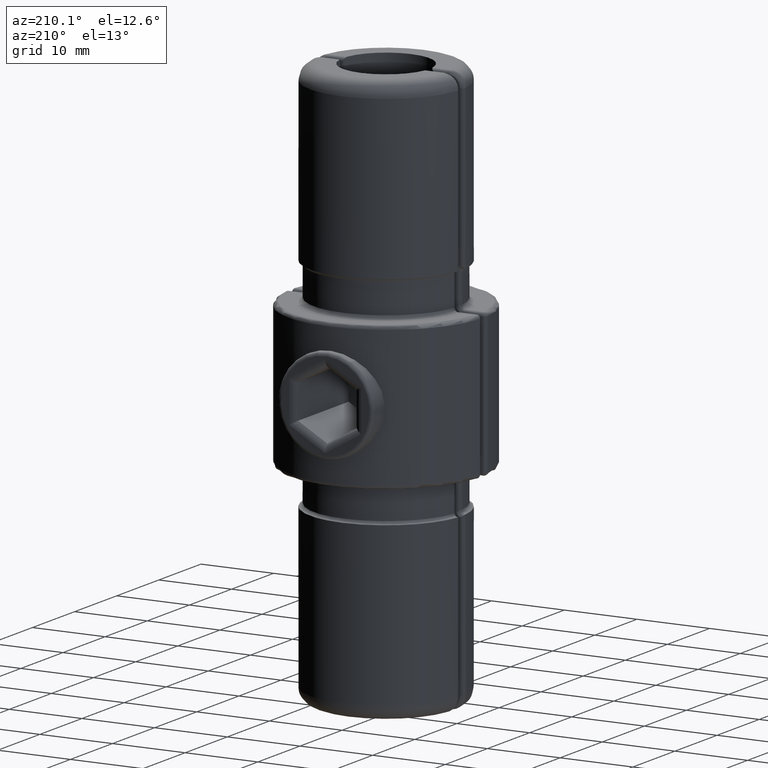
[diagram: clean part render]
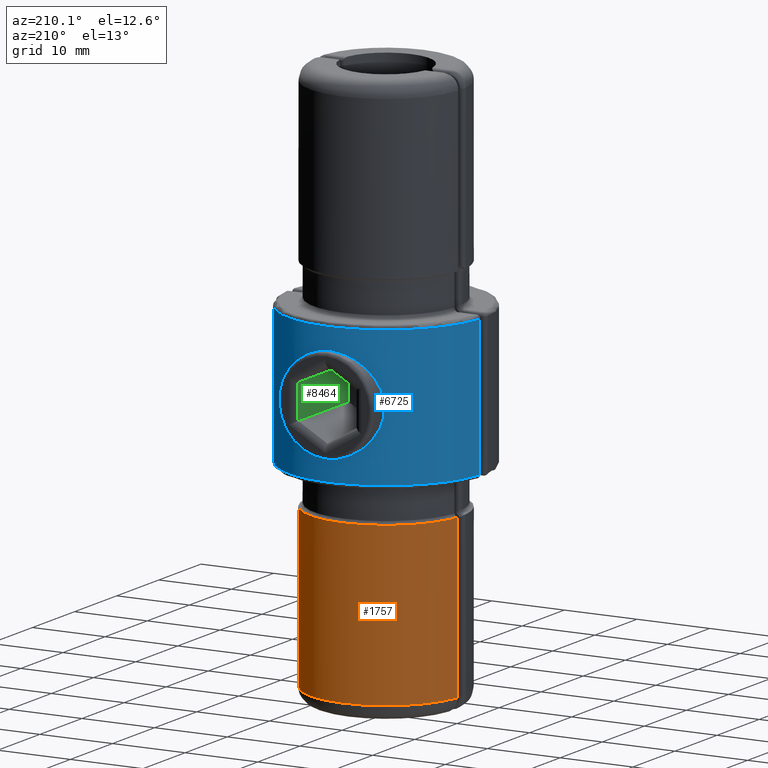
[diagram: same view with three faces highlighted in distinct colors, each labeled with its STEP entity id]
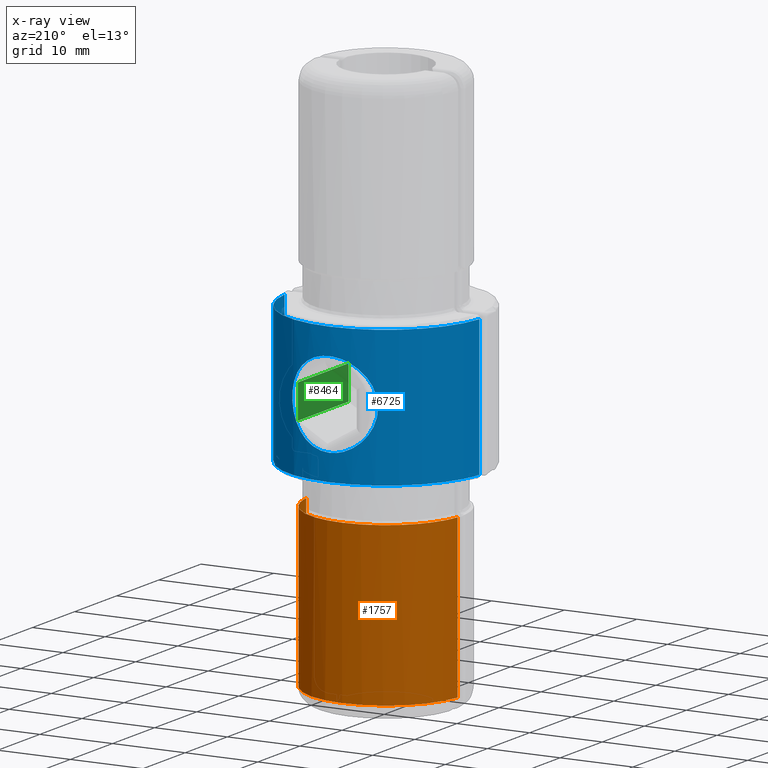
[diagram: x-ray of the same camera — body ghosted, the three highlighted faces saturated]
A machine part, auxiliary view with three faces highlighted in distinct colors.
The next image is the same camera in x-ray (body ghosted, the three faces saturated) — at least one of them is partly hidden behind the body in this view.
Their STEP definitions:

[orange] entity #1757 — the highlighted cylindrical surface (partial cylindrical patch) has radius 10.45 mm, axis along (0, 0, 1).
#159 = CARTESIAN_POINT ( 'NONE',  ( -9.562282454287899469, 3.820635007851544529, -15.00000000000003020 ) ) ;
#170 = CARTESIAN_POINT ( 'NONE',  ( -1.542399603730758129, 9.884835217246754624, -15.00000000000006573 ) ) ;
#339 = CARTESIAN_POINT ( 'NONE',  ( 9.485746277034950324, 3.967433925704642483, -15.00000000000001066 ) ) ;
#391 = DIRECTION ( 'NONE',  ( 0.000000000000000000, 0.000000000000000000, -1.000000000000000000 ) ) ;
#544 = CARTESIAN_POINT ( 'NONE',  ( -0.0003690679056815289005, 9.999999993793529995, -14.99999999999999822 ) ) ;
#557 = VERTEX_POINT ( 'NONE', #2678 ) ;
#579 = CARTESIAN_POINT ( 'NONE',  ( 7.102350287940888407, 7.253004276110678994, -15.00000000000003375 ) ) ;
#614 = CARTESIAN_POINT ( 'NONE',  ( 5.863474214424266862, 8.207855761381399162, -15.00000000000004796 ) ) ;
#684 = VECTOR ( 'NONE', #8338, 1000.000000000000000 ) ;
#1069 = CARTESIAN_POINT ( 'NONE',  ( -10.39728941257281747, 0.5472623821140010225, -15.00000000000002309 ) ) ;
#1229 = B_SPLINE_CURVE_WITH_KNOTS ( 'NONE', 3,
 ( #2390, #159, #7563, #5402, #3150, #3929, #9157, #3083, #4666, #8318, #6739, #8423, #9192, #8461, #1069 ),
 .UNSPECIFIED., .F., .F.,
 ( 4, 2, 2, 1, 1, 2, 2, 1, 4 ),
 ( 0.000000000000000000, 0.4507531445892120070, 0.5634414307365153141, 0.6761297168838189542, 0.7324738599574707187, 0.7465598957258835489, 0.7606459314942964900, 0.7888180030311221502, 0.9015062891784260124 ),
 .UNSPECIFIED. ) ;
#1266 = CARTESIAN_POINT ( 'NONE',  ( 8.266365894244647892E-17, -0.4500000000000007327, -37.00000000000000000 ) ) ;
#1335 = EDGE_CURVE ( 'NONE', #6159, #3824, #8607, .T. ) ;
#1555 = CARTESIAN_POINT ( 'NONE',  ( 9.221602206786830180, 4.465745390048624586, -15.00000000000001421 ) ) ;
#1684 = CARTESIAN_POINT ( 'NONE',  ( -7.654026996657409043, 6.706037979867748078, -15.00000000000004974 ) ) ;
#1722 = CARTESIAN_POINT ( 'NONE',  ( 9.221602206786830180, 4.465745390048624586, -15.00000000000001421 ) ) ;
#1757 = ADVANCED_FACE ( 'NONE', ( #6575 ), #2931, .T. ) ;
#1889 = CARTESIAN_POINT ( 'NONE',  ( 8.913014042439391105, 5.044635684711844981, -15.00000000000001776 ) ) ;
#1972 = B_SPLINE_CURVE_WITH_KNOTS ( 'NONE', 3,
 ( #6263, #3993, #339, #8498 ),
 .UNSPECIFIED., .F., .F.,
 ( 4, 4 ),
 ( 0.000000000000000000, 1.000000000000000000 ),
 .UNSPECIFIED. ) ;
#1985 = CARTESIAN_POINT ( 'NONE',  ( -8.559514531026907846, 5.581671991499237429, -15.00000000000004263 ) ) ;
#1986 = DIRECTION ( 'NONE',  ( -1.000000000000000000, 0.000000000000000000, 0.000000000000000000 ) ) ;
#2001 = CARTESIAN_POINT ( 'NONE',  ( 3.626633261083067605, 9.361987931583241718, -15.00000000000005684 ) ) ;
#2063 = ORIENTED_EDGE ( 'NONE', *, *, #6753, .T. ) ;
#2145 = CARTESIAN_POINT ( 'NONE',  ( 8.141880822221830627, 6.100746268688505225, -14.99999999999998934 ) ) ;
#2268 = ORIENTED_EDGE ( 'NONE', *, *, #3657, .F. ) ;
#2390 = CARTESIAN_POINT ( 'NONE',  ( -9.235859461141735949, 4.438905809487426524, -14.99999999999999645 ) ) ;
#2407 = ORIENTED_EDGE ( 'NONE', *, *, #7197, .F. ) ;
#2462 = DIRECTION ( 'NONE',  ( -0.000000000000000000, -0.000000000000000000, 1.000000000000000000 ) ) ;
#2469 = CARTESIAN_POINT ( 'NONE',  ( -1.928255717462747265, 9.819044266413028410, -15.00000000000006928 ) ) ;
#2504 = CARTESIAN_POINT ( 'NONE',  ( -7.102931983994258403, 7.252346914914812537, -15.00000000000005862 ) ) ;
#2533 = CARTESIAN_POINT ( 'NONE',  ( -5.874259584538960688, 8.226999232659467864, -15.00000000000006217 ) ) ;
#2666 = ORIENTED_EDGE ( 'NONE', *, *, #1335, .F. ) ;
#2678 = CARTESIAN_POINT ( 'NONE',  ( -10.39728941257281747, 0.5472623821140010225, -15.00000000000002309 ) ) ;
#2712 = B_SPLINE_CURVE_WITH_KNOTS ( 'NONE', 3,
 ( #7786, #6051, #6176, #6992 ),
 .UNSPECIFIED., .F., .F.,
 ( 4, 4 ),
 ( 0.000000000000000000, 1.000000000000000000 ),
 .UNSPECIFIED. ) ;
#2739 = CARTESIAN_POINT ( 'NONE',  ( 2.695129648469022143, 9.644852723558727803, -15.00000000000005684 ) ) ;
#2857 = B_SPLINE_CURVE_WITH_KNOTS ( 'NONE', 3,
 ( #2145, #6523, #579, #7174, #614, #7302, #5722, #6455, #2001, #7205, #2739, #8728, #9484, #5016, #544 ),
 .UNSPECIFIED., .F., .F.,
 ( 4, 2, 2, 2, 1, 2, 2, 4 ),
 ( 0.000000000000000000, 0.2500000000000000000, 0.3750000000000000000, 0.5000000000000000000, 0.6250000000000000000, 0.6875000000000000000, 0.7500000000000000000, 1.000000000000000000 ),
 .UNSPECIFIED. ) ;
#2931 = CYLINDRICAL_SURFACE ( 'NONE', #5478, 10.45000000000000284 ) ;
#2997 = EDGE_LOOP ( 'NONE', ( #4011, #2063, #3286, #6909, #3500, #9222, #2666, #2407, #7103, #4986, #2268 ) ) ;
#3083 = CARTESIAN_POINT ( 'NONE',  ( -10.30322256304947892, 1.295387893398272983, -15.00000000000001066 ) ) ;
#3093 = CARTESIAN_POINT ( 'NONE',  ( -8.141880822256059247, 6.100746268645965920, -14.99999999999999467 ) ) ;
#3129 = CARTESIAN_POINT ( 'NONE',  ( -4.163159171856150031, 9.141665113258202524, -15.00000000000006395 ) ) ;
#3150 = CARTESIAN_POINT ( 'NONE',  ( -10.12138501882786024, 2.168225122645813130, -15.00000000000001421 ) ) ;
#3183 = DIRECTION ( 'NONE',  ( 1.000000000000000000, 0.000000000000000000, 0.000000000000000000 ) ) ;
#3225 = CARTESIAN_POINT ( 'NONE',  ( -0.0003690679056815289005, 9.999999993793529995, -14.99999999999999822 ) ) ;
#3286 = ORIENTED_EDGE ( 'NONE', *, *, #8273, .T. ) ;
#3500 = ORIENTED_EDGE ( 'NONE', *, *, #4340, .F. ) ;
#3508 = CARTESIAN_POINT ( 'NONE',  ( -8.924174077322117427, 5.027725171779714231, -15.00000000000003908 ) ) ;
#3514 = CARTESIAN_POINT ( 'NONE',  ( 8.141880822221830627, 6.100746268688505225, -14.99999999999998934 ) ) ;
#3548 = VERTEX_POINT ( 'NONE', #6211 ) ;
#3657 = EDGE_CURVE ( 'NONE', #5976, #3548, #2712, .T. ) ;
#3788 = CARTESIAN_POINT ( 'NONE',  ( 10.29578653130654153, 1.338653041192420901, -15.00000000000000355 ) ) ;
#3824 = VERTEX_POINT ( 'NONE', #6942 ) ;
#3927 = EDGE_CURVE ( 'NONE', #3824, #5027, #9487, .T. ) ;
#3929 = CARTESIAN_POINT ( 'NONE',  ( -10.20374640384460108, 1.826662198050900798, -15.00000000000001954 ) ) ;
#3993 = CARTESIAN_POINT ( 'NONE',  ( 9.712974276227775761, 3.440778503204462435, -15.00000000000000533 ) ) ;
#4011 = ORIENTED_EDGE ( 'NONE', *, *, #5711, .F. ) ;
#4031 = CARTESIAN_POINT ( 'NONE',  ( 8.266365894244647892E-17, -0.4500000000000007327, -39.00000000000000000 ) ) ;
#4178 = LINE ( 'NONE', #7129, #6934 ) ;
#4299 = LINE ( 'NONE', #7717, #684 ) ;
#4340 = EDGE_CURVE ( 'NONE', #5027, #557, #1229, .T. ) ;
#4391 = EDGE_CURVE ( 'NONE', #3548, #8971, #1972, .T. ) ;
#4465 = VERTEX_POINT ( 'NONE', #4780 ) ;
#4613 = CARTESIAN_POINT ( 'NONE',  ( -2.122347904037088728, 9.780414575336306982, -15.00000000000007105 ) ) ;
#4666 = CARTESIAN_POINT ( 'NONE',  ( -10.31870294499509733, 1.189498413811702848, -15.00000000000001066 ) ) ;
#4780 = CARTESIAN_POINT ( 'NONE',  ( -10.40226021110595767, 0.5477386934673380559, -37.00000000000000000 ) ) ;
#4986 = ORIENTED_EDGE ( 'NONE', *, *, #4391, .F. ) ;
#5016 = CARTESIAN_POINT ( 'NONE',  ( 0.7697595916389222692, 10.00002719281474128, -15.00000000000006928 ) ) ;
#5027 = VERTEX_POINT ( 'NONE', #7168 ) ;
#5029 = DIRECTION ( 'NONE',  ( -0.000000000000000000, -0.000000000000000000, 1.000000000000000000 ) ) ;
#5211 = DIRECTION ( 'NONE',  ( 0.000000000000000000, 1.000000000000000000, -7.968107832237963299E-15 ) ) ;
#5223 = EDGE_CURVE ( 'NONE', #4465, #557, #4299, .T. ) ;
#5402 = CARTESIAN_POINT ( 'NONE',  ( -10.07477046159532996, 2.339308476267471626, -15.00000000000001599 ) ) ;
#5476 = CARTESIAN_POINT ( 'NONE',  ( -3.806771743316903933, 9.288013314900439354, -15.00000000000006395 ) ) ;
#5478 = AXIS2_PLACEMENT_3D ( 'NONE', #4031, #2462, #3183 ) ;
#5711 = EDGE_CURVE ( 'NONE', #8442, #5976, #5814, .T. ) ;
#5718 = VERTEX_POINT ( 'NONE', #3514 ) ;
#5722 = CARTESIAN_POINT ( 'NONE',  ( 4.864106495992341017, 8.806486684908024998, -15.00000000000005329 ) ) ;
#5814 = CIRCLE ( 'NONE', #7600, 10.45000000000000284 ) ;
#5925 = DIRECTION ( 'NONE',  ( -1.154816685014190132E-15, 7.998275916180468242E-15, 1.000000000000000000 ) ) ;
#5976 = VERTEX_POINT ( 'NONE', #3788 ) ;
#6051 = CARTESIAN_POINT ( 'NONE',  ( 10.20445323738968924, 1.864382780673968343, -14.99999999999999112 ) ) ;
#6159 = VERTEX_POINT ( 'NONE', #9394 ) ;
#6176 = CARTESIAN_POINT ( 'NONE',  ( 10.07361979507610172, 2.380091474458734258, -14.99999999999999645 ) ) ;
#6211 = CARTESIAN_POINT ( 'NONE',  ( 9.903286204365777223, 2.885779122546717090, -15.00000000000000711 ) ) ;
#6242 = CARTESIAN_POINT ( 'NONE',  ( -0.9637703130330962376, 9.967077307187562241, -15.00000000000006928 ) ) ;
#6263 = CARTESIAN_POINT ( 'NONE',  ( 9.903286204365777223, 2.885779122546717090, -15.00000000000000711 ) ) ;
#6455 = CARTESIAN_POINT ( 'NONE',  ( 4.164162957203257243, 9.141111714049607428, -15.00000000000005329 ) ) ;
#6523 = CARTESIAN_POINT ( 'NONE',  ( 7.652247447511332901, 6.707620253299118041, -15.00000000000003020 ) ) ;
#6575 = FACE_OUTER_BOUND ( 'NONE', #2997, .T. ) ;
#6688 = CARTESIAN_POINT ( 'NONE',  ( 8.266365894244647892E-17, -0.4500000000000007327, -14.99999999999998579 ) ) ;
#6697 = EDGE_CURVE ( 'NONE', #8971, #5718, #7233, .T. ) ;
#6739 = CARTESIAN_POINT ( 'NONE',  ( -10.32647051972234031, 1.134526509462367105, -15.00000000000001066 ) ) ;
#6753 = EDGE_CURVE ( 'NONE', #8442, #6842, #4178, .T. ) ;
#6842 = VERTEX_POINT ( 'NONE', #7380 ) ;
#6878 = CARTESIAN_POINT ( 'NONE',  ( -0.3856056620363909615, 9.999986388198978560, -15.00000000000006750 ) ) ;
#6909 = ORIENTED_EDGE ( 'NONE', *, *, #5223, .T. ) ;
#6934 = VECTOR ( 'NONE', #391, 1000.000000000000000 ) ;
#6942 = CARTESIAN_POINT ( 'NONE',  ( -8.141880822256059247, 6.100746268645965920, -14.99999999999999467 ) ) ;
#6992 = CARTESIAN_POINT ( 'NONE',  ( 9.903286204365777223, 2.885779122546717090, -15.00000000000000711 ) ) ;
#7103 = ORIENTED_EDGE ( 'NONE', *, *, #6697, .F. ) ;
#7129 = CARTESIAN_POINT ( 'NONE',  ( 10.40226021110595589, 0.5477386934673416086, -39.00000000000000000 ) ) ;
#7164 = CARTESIAN_POINT ( 'NONE',  ( 8.141880822221830627, 6.100746268688505225, -14.99999999999998934 ) ) ;
#7168 = CARTESIAN_POINT ( 'NONE',  ( -9.235859461141735949, 4.438905809487426524, -14.99999999999999645 ) ) ;
#7174 = CARTESIAN_POINT ( 'NONE',  ( 6.181477988876663332, 7.983310993601718586, -15.00000000000004619 ) ) ;
#7187 = CARTESIAN_POINT ( 'NONE',  ( -9.235859461141735949, 4.438905809487426524, -14.99999999999999645 ) ) ;
#7197 = EDGE_CURVE ( 'NONE', #5718, #6159, #2857, .T. ) ;
#7205 = CARTESIAN_POINT ( 'NONE',  ( 3.070245501920316755, 9.537725317633041655, -15.00000000000006217 ) ) ;
#7233 = B_SPLINE_CURVE_WITH_KNOTS ( 'NONE', 3,
 ( #1722, #1889, #9346, #7164 ),
 .UNSPECIFIED., .F., .F.,
 ( 4, 4 ),
 ( 0.000000000000000000, 1.000000000000000000 ),
 .UNSPECIFIED. ) ;
#7302 = CARTESIAN_POINT ( 'NONE',  ( 5.205373982657508058, 8.619163687506105731, -15.00000000000004796 ) ) ;
#7380 = CARTESIAN_POINT ( 'NONE',  ( 10.40226021110595589, 0.5477386934673409424, -37.00000000000000000 ) ) ;
#7492 = CARTESIAN_POINT ( 'NONE',  ( 10.40226021110595767, 0.5477386934673418306, -14.99999999999998224 ) ) ;
#7563 = CARTESIAN_POINT ( 'NONE',  ( -9.825287239642221948, 3.176587855386136194, -15.00000000000002665 ) ) ;
#7600 = AXIS2_PLACEMENT_3D ( 'NONE', #6688, #5925, #5211 ) ;
#7671 = CARTESIAN_POINT ( 'NONE',  ( -5.217071789118105762, 8.637648802877794907, -15.00000000000006040 ) ) ;
#7717 = CARTESIAN_POINT ( 'NONE',  ( -10.40226021110595589, 0.5477386934673377228, -39.00000000000000000 ) ) ;
#7786 = CARTESIAN_POINT ( 'NONE',  ( 10.29578653130654153, 1.338653041192420901, -15.00000000000000355 ) ) ;
#8034 = CARTESIAN_POINT ( 'NONE',  ( -8.141880822256059247, 6.100746268645965920, -14.99999999999999467 ) ) ;
#8184 = AXIS2_PLACEMENT_3D ( 'NONE', #1266, #5029, #1986 ) ;
#8273 = EDGE_CURVE ( 'NONE', #6842, #4465, #9418, .T. ) ;
#8318 = CARTESIAN_POINT ( 'NONE',  ( -10.32473097695939046, 1.147156204926665035, -15.00000000000001243 ) ) ;
#8331 = CARTESIAN_POINT ( 'NONE',  ( -2.698104325210987753, 9.649597787135888893, -15.00000000000006750 ) ) ;
#8338 = DIRECTION ( 'NONE',  ( -0.000000000000000000, -0.000000000000000000, 1.000000000000000000 ) ) ;
#8423 = CARTESIAN_POINT ( 'NONE',  ( -10.33256874165436834, 1.089564360847934177, -15.00000000000001243 ) ) ;
#8442 = VERTEX_POINT ( 'NONE', #7492 ) ;
#8461 = CARTESIAN_POINT ( 'NONE',  ( -10.37454570456017144, 0.7323550888248426816, -15.00000000000001066 ) ) ;
#8475 = CARTESIAN_POINT ( 'NONE',  ( -3.073372854478544358, 9.542396415835352030, -15.00000000000006573 ) ) ;
#8498 = CARTESIAN_POINT ( 'NONE',  ( 9.221602206786830180, 4.465745390048624586, -15.00000000000001421 ) ) ;
#8607 = B_SPLINE_CURVE_WITH_KNOTS ( 'NONE', 3,
 ( #3225, #6878, #6242, #170, #2469, #4613, #8331, #8475, #5476, #3129, #7671, #2533, #2504, #1684, #3093 ),
 .UNSPECIFIED., .F., .F.,
 ( 4, 1, 2, 2, 2, 2, 2, 4 ),
 ( 0.000000000000000000, 0.1250000000000000833, 0.1875000000000000833, 0.2500000000000001110, 0.3750000000000002220, 0.5000000000000003331, 0.7500000000000002220, 1.000000000000000000 ),
 .UNSPECIFIED. ) ;
#8728 = CARTESIAN_POINT ( 'NONE',  ( 2.506878416102263252, 9.693082695656100256, -15.00000000000006040 ) ) ;
#8971 = VERTEX_POINT ( 'NONE', #1555 ) ;
#9157 = CARTESIAN_POINT ( 'NONE',  ( -10.25763964353737556, 1.571141986185011108, -15.00000000000001776 ) ) ;
#9192 = CARTESIAN_POINT ( 'NONE',  ( -10.35308502666953956, 0.9314817300483647644, -15.00000000000000533 ) ) ;
#9222 = ORIENTED_EDGE ( 'NONE', *, *, #3927, .F. ) ;
#9346 = CARTESIAN_POINT ( 'NONE',  ( 8.553106914251058512, 5.589635977591805194, -15.00000000000002132 ) ) ;
#9394 = CARTESIAN_POINT ( 'NONE',  ( -0.0003690679056815289005, 9.999999993793529995, -14.99999999999999822 ) ) ;
#9418 = CIRCLE ( 'NONE', #8184, 10.45000000000000284 ) ;
#9484 = CARTESIAN_POINT ( 'NONE',  ( 1.541125205608663062, 9.912338478991276958, -15.00000000000006395 ) ) ;
#9487 = B_SPLINE_CURVE_WITH_KNOTS ( 'NONE', 3,
 ( #8034, #1985, #3508, #7187 ),
 .UNSPECIFIED., .F., .F.,
 ( 4, 4 ),
 ( 0.000000000000000000, 1.000000000000000000 ),
 .UNSPECIFIED. ) ;

[blue] entity #6725 — the highlighted cylindrical surface (partial cylindrical patch) has radius 13.45 mm, axis along (-0, -0, -1).
#1 = EDGE_CURVE ( 'NONE', #2776, #7267, #761, .T. ) ;
#174 = CYLINDRICAL_SURFACE ( 'NONE', #4404, 13.44999999999999929 ) ;
#437 = CARTESIAN_POINT ( 'NONE',  ( 1.543455871338262009, 12.91660272519443708, -5.707742930443481910 ) ) ;
#500 = CARTESIAN_POINT ( 'NONE',  ( 3.448526007506214519, 12.55143021727021591, -4.791088289881415996 ) ) ;
#570 = VECTOR ( 'NONE', #5461, 1000.000000000000000 ) ;
#606 = CARTESIAN_POINT ( 'NONE',  ( 5.115132070540981957, 11.99146129960974783, 2.964998485882117674 ) ) ;
#615 = CARTESIAN_POINT ( 'NONE',  ( -5.590960956402184934, 11.78397000538633321, 1.923293318150169018 ) ) ;
#635 = CARTESIAN_POINT ( 'NONE',  ( -0.9665335123548375318, 12.96660048604064208, 5.823560824726877527 ) ) ;
#662 = CARTESIAN_POINT ( 'NONE',  ( 3.898708388863697305, 12.42346782519885551, -4.432449198608674479 ) ) ;
#672 = CARTESIAN_POINT ( 'NONE',  ( -4.441889745909757714, 12.24855081244851540, 3.902066402808175294 ) ) ;
#680 = CARTESIAN_POINT ( 'NONE',  ( 13.41376022940240986, 0.5366795366795419353, -9.500000000000000000 ) ) ;
#705 = DIRECTION ( 'NONE',  ( 1.000000000000000000, 0.000000000000000000, 0.000000000000000000 ) ) ;
#761 = CIRCLE ( 'NONE', #3053, 13.44999999999999929 ) ;
#935 = ORIENTED_EDGE ( 'NONE', *, *, #5037, .T. ) ;
#1094 = AXIS2_PLACEMENT_3D ( 'NONE', #6605, #2082, #8751 ) ;
#1340 = CARTESIAN_POINT ( 'NONE',  ( 0.3987440537566691590, 12.99972040569791965, 5.899362619099420613 ) ) ;
#1350 = CARTESIAN_POINT ( 'NONE',  ( -5.862579203455133836, 11.65536871462244761, -0.7711592067773727077 ) ) ;
#1373 = CARTESIAN_POINT ( 'NONE',  ( -1.910344698837915800, 12.86859535325287496, 5.595619500575491401 ) ) ;
#1401 = CARTESIAN_POINT ( 'NONE',  ( 5.294319860744748141, 11.91522827016888009, -2.631931009563403645 ) ) ;
#1409 = CARTESIAN_POINT ( 'NONE',  ( -3.597431633082818880, 12.51088879360657025, 4.680280860232707951 ) ) ;
#1464 = CARTESIAN_POINT ( 'NONE',  ( -5.293980636868185208, 11.91538052488361465, 2.632806605149621948 ) ) ;
#1536 = VERTEX_POINT ( 'NONE', #2013 ) ;
#1580 = CARTESIAN_POINT ( 'NONE',  ( 0.000000000000000000, 13.00000000000000000, -5.899999999999995026 ) ) ;
#1996 = CARTESIAN_POINT ( 'NONE',  ( 3.603647924436092609, 12.50915979469864148, -4.675495122053950681 ) ) ;
#2013 = CARTESIAN_POINT ( 'NONE',  ( 13.41376022940241164, 0.5366795366795419353, 9.500000000000000000 ) ) ;
#2060 = CARTESIAN_POINT ( 'NONE',  ( 7.047314121155778821E-16, 12.99999999999999822, -5.899999999999995914 ) ) ;
#2082 = DIRECTION ( 'NONE',  ( -0.000000000000000000, -0.000000000000000000, -1.000000000000000000 ) ) ;
#2084 = CARTESIAN_POINT ( 'NONE',  ( 0.7864711473719887547, 12.98257175593601431, 5.860585624407166350 ) ) ;
#2096 = CARTESIAN_POINT ( 'NONE',  ( -4.035837177013650745, 12.38100882991759022, 4.307974577724440479 ) ) ;
#2119 = CARTESIAN_POINT ( 'NONE',  ( 5.516322049268214123, 11.81699797379425121, -2.101645059352730271 ) ) ;
#2127 = CARTESIAN_POINT ( 'NONE',  ( -5.298577193997175527, 11.91340704910807347, -2.623667827296278787 ) ) ;
#2150 = CARTESIAN_POINT ( 'NONE',  ( 4.690296086271732001, 12.15776181532107003, 3.599571466642130790 ) ) ;
#2217 = CARTESIAN_POINT ( 'NONE',  ( -5.108523969591012737, 11.99418114620653419, 2.976285985494566688 ) ) ;
#2363 = CARTESIAN_POINT ( 'NONE',  ( -3.127180760107151070, 12.63243024813517046, 5.006714488355173742 ) ) ;
#2523 = FACE_BOUND ( 'NONE', #7873, .T. ) ;
#2697 = VECTOR ( 'NONE', #6471, 1000.000000000000000 ) ;
#2776 = VERTEX_POINT ( 'NONE', #680 ) ;
#2819 = CARTESIAN_POINT ( 'NONE',  ( 5.900290483146124920, 11.63673125058893909, 0.1862082961221808164 ) ) ;
#2848 = CARTESIAN_POINT ( 'NONE',  ( 5.582072829410046566, 11.78711271562223750, -1.920485879593002654 ) ) ;
#2860 = CARTESIAN_POINT ( 'NONE',  ( -4.447284329422895865, 12.24667049811504071, -3.896005096407281432 ) ) ;
#2881 = CARTESIAN_POINT ( 'NONE',  ( 5.708968890738883140, 11.72855913021730956, 1.538964662185011489 ) ) ;
#2913 = CARTESIAN_POINT ( 'NONE',  ( -5.889898955089603483, 11.64181831330759920, 0.3970223655404185314 ) ) ;
#3053 = AXIS2_PLACEMENT_3D ( 'NONE', #5169, #6618, #705 ) ;
#3234 = CARTESIAN_POINT ( 'NONE',  ( -13.41376022940241164, 0.5366795366795368283, 9.500000000000000000 ) ) ;
#3551 = CARTESIAN_POINT ( 'NONE',  ( 5.696400990626215410, 11.73431288344459666, -1.548812073993054206 ) ) ;
#3563 = CARTESIAN_POINT ( 'NONE',  ( -3.892855313665876782, 12.42524097567904207, 4.437591778456970282 ) ) ;
#3587 = CARTESIAN_POINT ( 'NONE',  ( 5.296631879693553202, 11.91425868108948016, 2.628034829255997629 ) ) ;
#3607 = VERTEX_POINT ( 'NONE', #3234 ) ;
#3623 = CARTESIAN_POINT ( 'NONE',  ( 4.685283661748032458, 12.15965875742059765, -3.606363353010157979 ) ) ;
#3651 = CARTESIAN_POINT ( 'NONE',  ( -2.963147605416892372, 12.67068461075028729, 5.105574404228392815 ) ) ;
#3684 = CARTESIAN_POINT ( 'NONE',  ( -0.3950539815350159190, 12.99999999999999822, -5.899999999999997691 ) ) ;
#3844 = ORIENTED_EDGE ( 'NONE', *, *, #7141, .T. ) ;
#3958 = EDGE_CURVE ( 'NONE', #1536, #2776, #6431, .T. ) ;
#4050 = FACE_OUTER_BOUND ( 'NONE', #6287, .T. ) ;
#4221 = CARTESIAN_POINT ( 'NONE',  ( 0.7825771396327204643, 12.98264298120322202, -5.860730194038997531 ) ) ;
#4309 = CARTESIAN_POINT ( 'NONE',  ( 5.899398499654619599, 11.63716665642304626, -0.3993777691243610706 ) ) ;
#4320 = CARTESIAN_POINT ( 'NONE',  ( -5.900482089183849865, 11.63663772140698072, -0.3819478206263126618 ) ) ;
#4344 = CARTESIAN_POINT ( 'NONE',  ( 5.890792247313109797, 11.64138234892620360, 0.3836898042105465478 ) ) ;
#4371 = CARTESIAN_POINT ( 'NONE',  ( 5.595457208425701268, 11.78192791961101804, 1.910951323672466007 ) ) ;
#4381 = CARTESIAN_POINT ( 'NONE',  ( -3.134937014122898269, 12.63056759885364677, -5.001845723624373186 ) ) ;
#4404 = AXIS2_PLACEMENT_3D ( 'NONE', #7910, #4831, #5580 ) ;
#4410 = CARTESIAN_POINT ( 'NONE',  ( -5.899752040073960480, 11.63699408202769625, 0.2020374253900754091 ) ) ;
#4435 = CARTESIAN_POINT ( 'NONE',  ( -0.7899270568545636584, 12.98220462652005303, -5.859729950419074740 ) ) ;
#4831 = DIRECTION ( 'NONE',  ( -0.000000000000000000, -0.000000000000000000, -1.000000000000000000 ) ) ;
#4974 = CARTESIAN_POINT ( 'NONE',  ( 2.970371819933331992, 12.67202227277951643, -5.112174268830098178 ) ) ;
#5037 = EDGE_CURVE ( 'NONE', #7386, #7386, #6419, .T. ) ;
#5065 = CARTESIAN_POINT ( 'NONE',  ( 1.558173463935424774, 12.91505205004103018, 5.704129748081119722 ) ) ;
#5080 = CARTESIAN_POINT ( 'NONE',  ( -5.113770039584506044, 11.99202477452017668, -2.967356694725818755 ) ) ;
#5099 = CARTESIAN_POINT ( 'NONE',  ( 2.631433788326353884, 12.74121073941745053, 5.284182532468610027 ) ) ;
#5125 = CARTESIAN_POINT ( 'NONE',  ( 3.907059475289158978, 12.42312282718389227, 4.437291809042767987 ) ) ;
#5134 = CARTESIAN_POINT ( 'NONE',  ( -5.708457242813865129, 11.72880546444151051, -1.542088631028727841 ) ) ;
#5169 = CARTESIAN_POINT ( 'NONE',  ( 8.266365894244647892E-17, -0.4500000000000007327, -9.500000000000000000 ) ) ;
#5320 = CARTESIAN_POINT ( 'NONE',  ( -13.41376022940241164, 0.5366795366795369393, -9.500000000000000000 ) ) ;
#5461 = DIRECTION ( 'NONE',  ( 0.000000000000000000, 0.000000000000000000, 1.000000000000000000 ) ) ;
#5580 = DIRECTION ( 'NONE',  ( -1.000000000000000000, 0.000000000000000000, 0.000000000000000000 ) ) ;
#5685 = CARTESIAN_POINT ( 'NONE',  ( 1.920769533090073811, 12.86704971073344161, -5.591938980024520944 ) ) ;
#5808 = CARTESIAN_POINT ( 'NONE',  ( 2.458270486563653545, 12.77466098063901434, 5.366911265114268303 ) ) ;
#5840 = CARTESIAN_POINT ( 'NONE',  ( 1.927312801466775971, 12.86604193133553053, 5.589524721851034883 ) ) ;
#5846 = CARTESIAN_POINT ( 'NONE',  ( -5.850481989901189728, 11.66093886984194938, 0.7876528078707927261 ) ) ;
#5867 = CARTESIAN_POINT ( 'NONE',  ( 2.970162792222565518, 12.66909362500948077, 5.101486235058233731 ) ) ;
#5877 = CARTESIAN_POINT ( 'NONE',  ( -1.550200574110872864, 12.91581400678178326, -5.705900281902547277 ) ) ;
#6165 = CARTESIAN_POINT ( 'NONE',  ( -3.444323204872638655, 12.55253353635675673, 4.794067910935950749 ) ) ;
#6287 = EDGE_LOOP ( 'NONE', ( #3844, #8524, #8580, #8120 ) ) ;
#6383 = EDGE_CURVE ( 'NONE', #7267, #3607, #8840, .T. ) ;
#6419 = B_SPLINE_CURVE_WITH_KNOTS ( 'NONE', 3,
 ( #2060, #7261, #4221, #437, #5685, #9452, #4974, #500, #1996, #662, #7325, #8876, #3623, #8813, #1401, #2119, #2848, #3551, #7294, #8070, #4309, #2819, #4344, #6548, #8782, #2881, #4371, #3587, #606, #2150, #9539, #5125, #8047, #8843, #5867, #5099, #5808, #5840, #5065, #2084, #1340, #9598, #6608, #9569, #635, #7355, #1373, #6577, #8109, #3651, #2363, #6165, #1409, #3563, #2096, #672, #7394, #2217, #1464, #615, #8822, #8789, #5846, #2913, #4410, #4320, #1350, #5134, #8852, #2127, #5080, #8119, #2860, #9632, #8081, #4381, #6588, #9606, #8911, #6557, #5877, #4435, #3684, #6614 ),
 .UNSPECIFIED., .T., .F.,
 ( 4, 2, 2, 2, 2, 2, 2, 2, 2, 2, 2, 2, 2, 2, 2, 2, 2, 2, 2, 2, 2, 2, 2, 2, 2, 2, 2, 2, 2, 2, 2, 2, 2, 2, 2, 2, 2, 2, 2, 2, 2, 4 ),
 ( 0.000000000000000000, 0.001167338960894632278, 0.002334677921789264990, 0.003502016882683897051, 0.004085686363131213299, 0.004669355843578529112, 0.005836694804473155536, 0.007004033765367782827, 0.007587703245815096906, 0.008171372726262410985, 0.009338711687157039143, 0.009922381167604353222, 0.01050605064805166730, 0.01167338960894629372, 0.01284072856984092362, 0.01400806753073555178, 0.01517540649163017993, 0.01575907597207749575, 0.01634274545252480809, 0.01751008441341943625, 0.01867742337431406441, 0.01926109285476138022, 0.01984476233520869951, 0.02101210129610332766, 0.02159577077655064001, 0.02217944025699795929, 0.02276310973744527510, 0.02334677921789258745, 0.02451411817878721561, 0.02568145713968184723, 0.02684879610057647539, 0.02743246558102379121, 0.02801613506147110702, 0.02918347402236573518, 0.03035081298326036334, 0.03151815194415499150, 0.03268549090504961618, 0.03385282986594424781, 0.03443649934639155669, 0.03502016882683887250, 0.03618750778773349719, 0.03735484674862811494 ),
 .UNSPECIFIED. ) ;
#6431 = LINE ( 'NONE', #9529, #2697 ) ;
#6471 = DIRECTION ( 'NONE',  ( -0.000000000000000000, -0.000000000000000000, -1.000000000000000000 ) ) ;
#6548 = CARTESIAN_POINT ( 'NONE',  ( 5.852182954865823739, 11.66011622866214026, 0.7749876319253524715 ) ) ;
#6557 = CARTESIAN_POINT ( 'NONE',  ( -1.919461771037982656, 12.86730142067735905, -5.592561329234285949 ) ) ;
#6577 = CARTESIAN_POINT ( 'NONE',  ( -2.447310213472928986, 12.77672096485171416, 5.371989048288424939 ) ) ;
#6588 = CARTESIAN_POINT ( 'NONE',  ( -2.971440719128952246, 12.66880148637145354, -5.100734200129600993 ) ) ;
#6605 = CARTESIAN_POINT ( 'NONE',  ( 8.266365894244647892E-17, -0.4500000000000007327, 9.500000000000000000 ) ) ;
#6608 = CARTESIAN_POINT ( 'NONE',  ( -0.3800540456450254845, 12.99605199201993599, 5.891019512803311819 ) ) ;
#6614 = CARTESIAN_POINT ( 'NONE',  ( 7.047314121155778821E-16, 12.99999999999999822, -5.899999999999995914 ) ) ;
#6618 = DIRECTION ( 'NONE',  ( 0.000000000000000000, 0.000000000000000000, 1.000000000000000000 ) ) ;
#6725 = ADVANCED_FACE ( 'NONE', ( #2523, #4050 ), #174, .T. ) ;
#7141 = EDGE_CURVE ( 'NONE', #3607, #1536, #8480, .T. ) ;
#7261 = CARTESIAN_POINT ( 'NONE',  ( 0.3950539815350201933, 12.99999999999999645, -5.899999999999995026 ) ) ;
#7267 = VERTEX_POINT ( 'NONE', #5320 ) ;
#7294 = CARTESIAN_POINT ( 'NONE',  ( 5.744916749487646079, 11.71142470675195746, -1.357878368286454140 ) ) ;
#7325 = CARTESIAN_POINT ( 'NONE',  ( 4.039434754505194292, 12.37986293333123555, -4.304531595160351998 ) ) ;
#7355 = CARTESIAN_POINT ( 'NONE',  ( -1.540330314365499165, 12.91702304377346699, 5.708727823415756575 ) ) ;
#7386 = VERTEX_POINT ( 'NONE', #1580 ) ;
#7394 = CARTESIAN_POINT ( 'NONE',  ( -4.683081407065039947, 12.16044844889704279, 3.608884031129154124 ) ) ;
#7873 = EDGE_LOOP ( 'NONE', ( #935 ) ) ;
#7910 = CARTESIAN_POINT ( 'NONE',  ( 8.266365894244647892E-17, -0.4500000000000007327, 10.00000000000000000 ) ) ;
#8047 = CARTESIAN_POINT ( 'NONE',  ( 3.614197646099563954, 12.50947447520633737, 4.679209489072395201 ) ) ;
#8070 = CARTESIAN_POINT ( 'NONE',  ( 5.860444646860528906, 11.65640185882025293, -0.7853642642111786643 ) ) ;
#8081 = CARTESIAN_POINT ( 'NONE',  ( -3.609141763751813503, 12.51082215339494041, -4.682868632683561572 ) ) ;
#8109 = CARTESIAN_POINT ( 'NONE',  ( -2.623679357993556671, 12.74275994675510582, 5.288046932000370681 ) ) ;
#8119 = CARTESIAN_POINT ( 'NONE',  ( -4.688549679465463527, 12.15841490476538844, -3.601853921895018296 ) ) ;
#8120 = ORIENTED_EDGE ( 'NONE', *, *, #6383, .T. ) ;
#8453 = CARTESIAN_POINT ( 'NONE',  ( -13.41376022940241342, 0.5366795366795371613, 10.00000000000000000 ) ) ;
#8480 = CIRCLE ( 'NONE', #1094, 13.44999999999999929 ) ;
#8524 = ORIENTED_EDGE ( 'NONE', *, *, #3958, .T. ) ;
#8580 = ORIENTED_EDGE ( 'NONE', *, *, #1, .T. ) ;
#8751 = DIRECTION ( 'NONE',  ( 1.000000000000000000, 0.000000000000000000, 0.000000000000000000 ) ) ;
#8782 = CARTESIAN_POINT ( 'NONE',  ( 5.823298946623311600, 11.67408641709394423, 0.9679224581418902629 ) ) ;
#8789 = CARTESIAN_POINT ( 'NONE',  ( -5.820743603786535658, 11.67531586173342362, 0.9832806474945539055 ) ) ;
#8813 = CARTESIAN_POINT ( 'NONE',  ( 5.113585315985002211, 11.99213093428049959, -2.967993403146361064 ) ) ;
#8822 = CARTESIAN_POINT ( 'NONE',  ( -5.704528894346394985, 11.73064914053724905, 1.555614934552839168 ) ) ;
#8840 = LINE ( 'NONE', #8453, #570 ) ;
#8843 = CARTESIAN_POINT ( 'NONE',  ( 3.136489365558994269, 12.63021063608626804, 5.000929011359736442 ) ) ;
#8852 = CARTESIAN_POINT ( 'NONE',  ( -5.594878610667504581, 11.78217427420723773, -1.912037259216414542 ) ) ;
#8876 = CARTESIAN_POINT ( 'NONE',  ( 4.441908374059352127, 12.24848865386533880, -3.901736992034984919 ) ) ;
#8911 = CARTESIAN_POINT ( 'NONE',  ( -2.457278297553107116, 12.77487697573355163, -5.367453054876701657 ) ) ;
#9452 = CARTESIAN_POINT ( 'NONE',  ( 2.633295973002073076, 12.74465501314694826, -5.293853933963026392 ) ) ;
#9529 = CARTESIAN_POINT ( 'NONE',  ( 13.41376022940241164, 0.5366795366795417133, 10.00000000000000000 ) ) ;
#9539 = CARTESIAN_POINT ( 'NONE',  ( 4.444472142438841367, 12.24760105068255989, 3.898889549234489049 ) ) ;
#9569 = CARTESIAN_POINT ( 'NONE',  ( -0.7708748220831064257, 12.97931521926538778, 5.852717658192551298 ) ) ;
#9598 = CARTESIAN_POINT ( 'NONE',  ( -0.1850542033631382977, 13.00013471660343178, 5.900307108517832688 ) ) ;
#9606 = CARTESIAN_POINT ( 'NONE',  ( -2.633127732044269642, 12.74086997634571361, -5.283331115348416596 ) ) ;
#9632 = CARTESIAN_POINT ( 'NONE',  ( -3.905276039821561795, 12.42371736124538195, -4.439145488802722639 ) ) ;

[green] entity #8464 — the highlighted planar face has unit normal (1, 0, -0).
#55 = CARTESIAN_POINT ( 'NONE',  ( 2.337499999999998579, 12.49999999999999822, -4.048668762692252621 ) ) ;
#526 = LINE ( 'NONE', #8071, #3428 ) ;
#764 = VECTOR ( 'NONE', #5713, 1000.000000000000000 ) ;
#833 = PLANE ( 'NONE',  #4899 ) ;
#1047 = EDGE_LOOP ( 'NONE', ( #8878, #6741, #7514, #5785 ) ) ;
#1095 = EDGE_CURVE ( 'NONE', #5039, #1251, #5980, .T. ) ;
#1251 = VERTEX_POINT ( 'NONE', #55 ) ;
#1787 = CARTESIAN_POINT ( 'NONE',  ( 2.337499999999999023, 12.50000000000000178, -4.048668762692252621 ) ) ;
#2364 = CARTESIAN_POINT ( 'NONE',  ( 4.674999999999998934, 0.000000000000000000, -9.462810255028965378E-16 ) ) ;
#2570 = DIRECTION ( 'NONE',  ( -0.4999999999999998890, 0.000000000000000000, -0.8660254037844387076 ) ) ;
#2632 = LINE ( 'NONE', #3485, #764 ) ;
#2722 = VECTOR ( 'NONE', #2570, 1000.000000000000000 ) ;
#2824 = EDGE_CURVE ( 'NONE', #5928, #5039, #8183, .T. ) ;
#3044 = DIRECTION ( 'NONE',  ( 0.8660254037844387076, 0.000000000000000000, -0.4999999999999998890 ) ) ;
#3428 = VECTOR ( 'NONE', #8969, 1000.000000000000000 ) ;
#3485 = CARTESIAN_POINT ( 'NONE',  ( 2.337499999999998579, 0.000000000000000000, -4.048668762692252621 ) ) ;
#4413 = CARTESIAN_POINT ( 'NONE',  ( 4.674999999999998934, 0.000000000000000000, -9.462810255028965378E-16 ) ) ;
#4552 = CARTESIAN_POINT ( 'NONE',  ( 4.674999999999998934, 0.5000000000000036637, -9.462810255028965378E-16 ) ) ;
#4859 = FACE_OUTER_BOUND ( 'NONE', #1047, .T. ) ;
#4899 = AXIS2_PLACEMENT_3D ( 'NONE', #2364, #3044, #8992 ) ;
#5039 = VERTEX_POINT ( 'NONE', #7361 ) ;
#5713 = DIRECTION ( 'NONE',  ( -0.000000000000000000, 1.000000000000000000, -0.000000000000000000 ) ) ;
#5785 = ORIENTED_EDGE ( 'NONE', *, *, #9489, .T. ) ;
#5882 = DIRECTION ( 'NONE',  ( -0.000000000000000000, 1.000000000000000000, -0.000000000000000000 ) ) ;
#5928 = VERTEX_POINT ( 'NONE', #4552 ) ;
#5980 = LINE ( 'NONE', #1787, #2722 ) ;
#6441 = VECTOR ( 'NONE', #5882, 1000.000000000000000 ) ;
#6506 = CARTESIAN_POINT ( 'NONE',  ( 2.337499999999998579, 0.5000000000000036637, -4.048668762692252621 ) ) ;
#6741 = ORIENTED_EDGE ( 'NONE', *, *, #1095, .T. ) ;
#7361 = CARTESIAN_POINT ( 'NONE',  ( 4.674999999999998934, 12.49999999999999822, -9.462810255028965378E-16 ) ) ;
#7514 = ORIENTED_EDGE ( 'NONE', *, *, #7630, .F. ) ;
#7630 = EDGE_CURVE ( 'NONE', #8267, #1251, #2632, .T. ) ;
#8071 = CARTESIAN_POINT ( 'NONE',  ( 4.674999999999998934, 0.5000000000000038858, -9.462810255028965378E-16 ) ) ;
#8183 = LINE ( 'NONE', #4413, #6441 ) ;
#8267 = VERTEX_POINT ( 'NONE', #6506 ) ;
#8464 = ADVANCED_FACE ( 'NONE', ( #4859 ), #833, .F. ) ;
#8878 = ORIENTED_EDGE ( 'NONE', *, *, #2824, .T. ) ;
#8969 = DIRECTION ( 'NONE',  ( 0.4999999999999998890, 0.000000000000000000, 0.8660254037844387076 ) ) ;
#8992 = DIRECTION ( 'NONE',  ( -0.4999999999999998890, 0.000000000000000000, -0.8660254037844387076 ) ) ;
#9489 = EDGE_CURVE ( 'NONE', #8267, #5928, #526, .T. ) ;